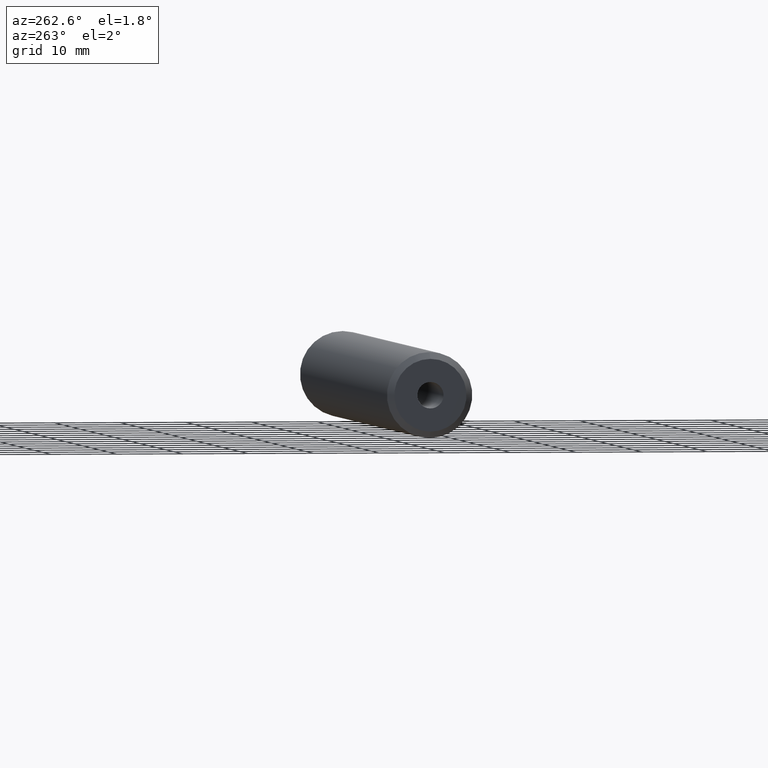
[diagram: clean part render]
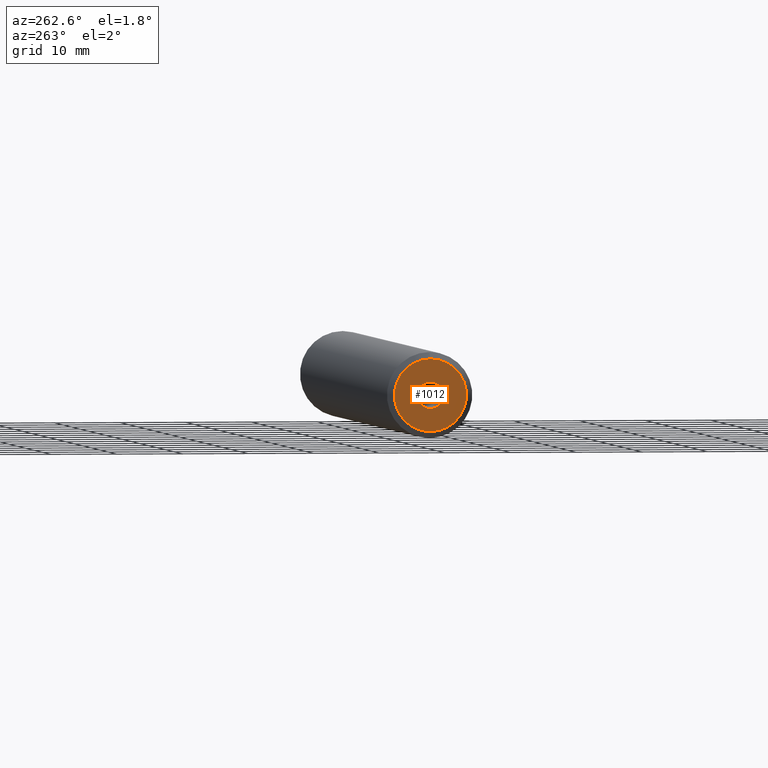
[diagram: same view with one face highlighted and labeled with its STEP entity id]
A machine part, auxiliary view. The second image highlights one B-rep face of the part: STEP entity #1012.
In plain terms, the highlighted planar face has unit normal (-1, 0, 0).
Its self-contained STEP definition (entity closure, byte-faithful):
#32 = VERTEX_POINT ( 'NONE', #290 ) ;
#43 = DIRECTION ( 'NONE',  ( 1.000000000000000000, -0.0000000000000000000, -0.0000000000000000000 ) ) ;
#50 = FACE_BOUND ( 'NONE', #469, .T. ) ;
#62 = AXIS2_PLACEMENT_3D ( 'NONE', #1008, #82, #683 ) ;
#82 = DIRECTION ( 'NONE',  ( -1.000000000000000000, 0.0000000000000000000, 0.0000000000000000000 ) ) ;
#125 = AXIS2_PLACEMENT_3D ( 'NONE', #979, #729, #196 ) ;
#130 = DIRECTION ( 'NONE',  ( 0.0000000000000000000, 0.0000000000000000000, -1.000000000000000000 ) ) ;
#134 = CARTESIAN_POINT ( 'NONE',  ( -103.0000000000000000, 0.0000000000000000000, 0.0000000000000000000 ) ) ;
#180 = AXIS2_PLACEMENT_3D ( 'NONE', #563, #43, #645 ) ;
#185 = EDGE_LOOP ( 'NONE', ( #570, #298 ) ) ;
#192 = AXIS2_PLACEMENT_3D ( 'NONE', #134, #746, #217 ) ;
#196 = DIRECTION ( 'NONE',  ( 0.0000000000000000000, 0.0000000000000000000, -1.000000000000000000 ) ) ;
#199 = VERTEX_POINT ( 'NONE', #808 ) ;
#209 = CARTESIAN_POINT ( 'NONE',  ( -103.0000000000000000, 0.0000000000000000000, 0.0000000000000000000 ) ) ;
#217 = DIRECTION ( 'NONE',  ( 0.0000000000000000000, 0.0000000000000000000, -1.000000000000000000 ) ) ;
#229 = ORIENTED_EDGE ( 'NONE', *, *, #870, .T. ) ;
#289 = EDGE_CURVE ( 'NONE', #313, #954, #515, .T. ) ;
#290 = CARTESIAN_POINT ( 'NONE',  ( -103.0000000000000100, 7.347880794884098000E-016, 5.499999999999980500 ) ) ;
#298 = ORIENTED_EDGE ( 'NONE', *, *, #735, .F. ) ;
#313 = VERTEX_POINT ( 'NONE', #825 ) ;
#338 = CIRCLE ( 'NONE', #125, 5.499999999999980500 ) ;
#390 = AXIS2_PLACEMENT_3D ( 'NONE', #209, #738, #130 ) ;
#423 = PLANE ( 'NONE',  #62 ) ;
#469 = EDGE_LOOP ( 'NONE', ( #229, #794 ) ) ;
#515 = CIRCLE ( 'NONE', #390, 1.999999999999986200 ) ;
#563 = CARTESIAN_POINT ( 'NONE',  ( -103.0000000000000100, 0.0000000000000000000, 0.0000000000000000000 ) ) ;
#570 = ORIENTED_EDGE ( 'NONE', *, *, #707, .F. ) ;
#645 = DIRECTION ( 'NONE',  ( 0.0000000000000000000, 0.0000000000000000000, -1.000000000000000000 ) ) ;
#683 = DIRECTION ( 'NONE',  ( 0.0000000000000000000, 0.0000000000000000000, 1.000000000000000000 ) ) ;
#707 = EDGE_CURVE ( 'NONE', #199, #32, #338, .T. ) ;
#712 = FACE_OUTER_BOUND ( 'NONE', #185, .T. ) ;
#729 = DIRECTION ( 'NONE',  ( 1.000000000000000000, -0.0000000000000000000, -0.0000000000000000000 ) ) ;
#735 = EDGE_CURVE ( 'NONE', #32, #199, #1042, .T. ) ;
#738 = DIRECTION ( 'NONE',  ( 1.000000000000000000, -0.0000000000000000000, -0.0000000000000000000 ) ) ;
#746 = DIRECTION ( 'NONE',  ( 1.000000000000000000, -0.0000000000000000000, -0.0000000000000000000 ) ) ;
#794 = ORIENTED_EDGE ( 'NONE', *, *, #289, .T. ) ;
#808 = CARTESIAN_POINT ( 'NONE',  ( -103.0000000000000100, 0.0000000000000000000, -5.499999999999980500 ) ) ;
#825 = CARTESIAN_POINT ( 'NONE',  ( -103.0000000000000000, 2.449293598294692600E-016, 1.999999999999986200 ) ) ;
#870 = EDGE_CURVE ( 'NONE', #954, #313, #1036, .T. ) ;
#954 = VERTEX_POINT ( 'NONE', #1000 ) ;
#979 = CARTESIAN_POINT ( 'NONE',  ( -103.0000000000000100, 0.0000000000000000000, 0.0000000000000000000 ) ) ;
#1000 = CARTESIAN_POINT ( 'NONE',  ( -103.0000000000000000, 0.0000000000000000000, -1.999999999999986200 ) ) ;
#1008 = CARTESIAN_POINT ( 'NONE',  ( -103.0000000000000100, 1.999999999999986200, 0.0000000000000000000 ) ) ;
#1012 = ADVANCED_FACE ( 'NONE', ( #50, #712 ), #423, .T. ) ;
#1036 = CIRCLE ( 'NONE', #192, 1.999999999999986200 ) ;
#1042 = CIRCLE ( 'NONE', #180, 5.499999999999980500 ) ;